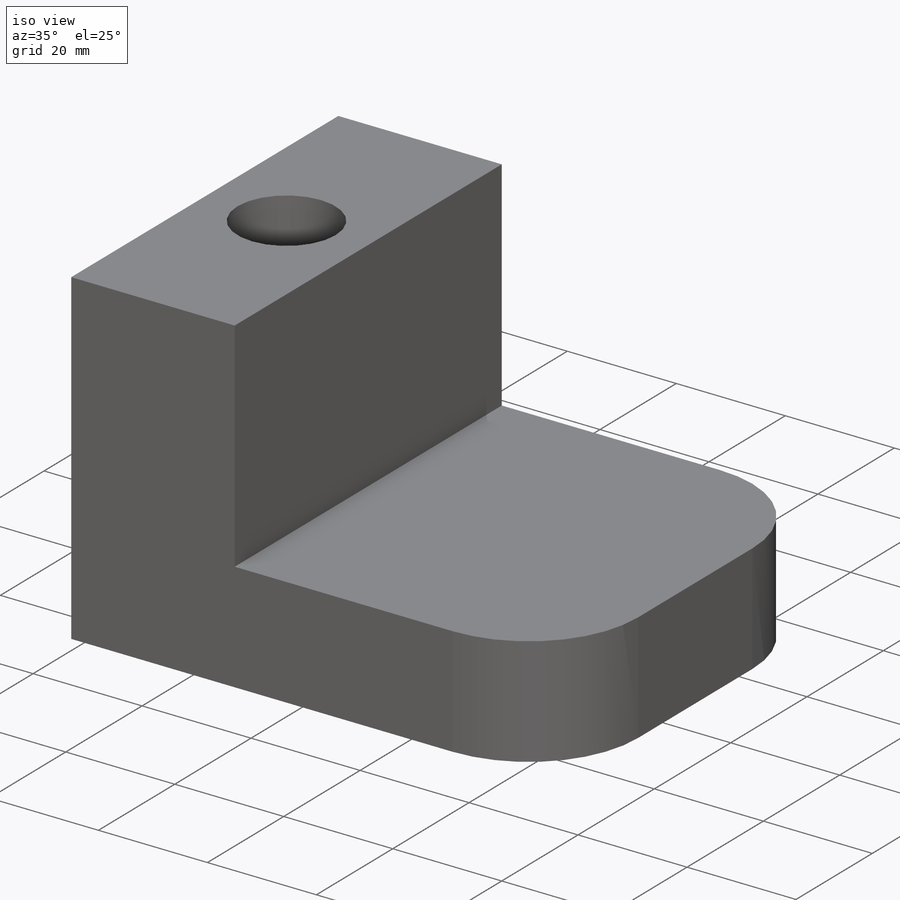
[diagram: iso view]
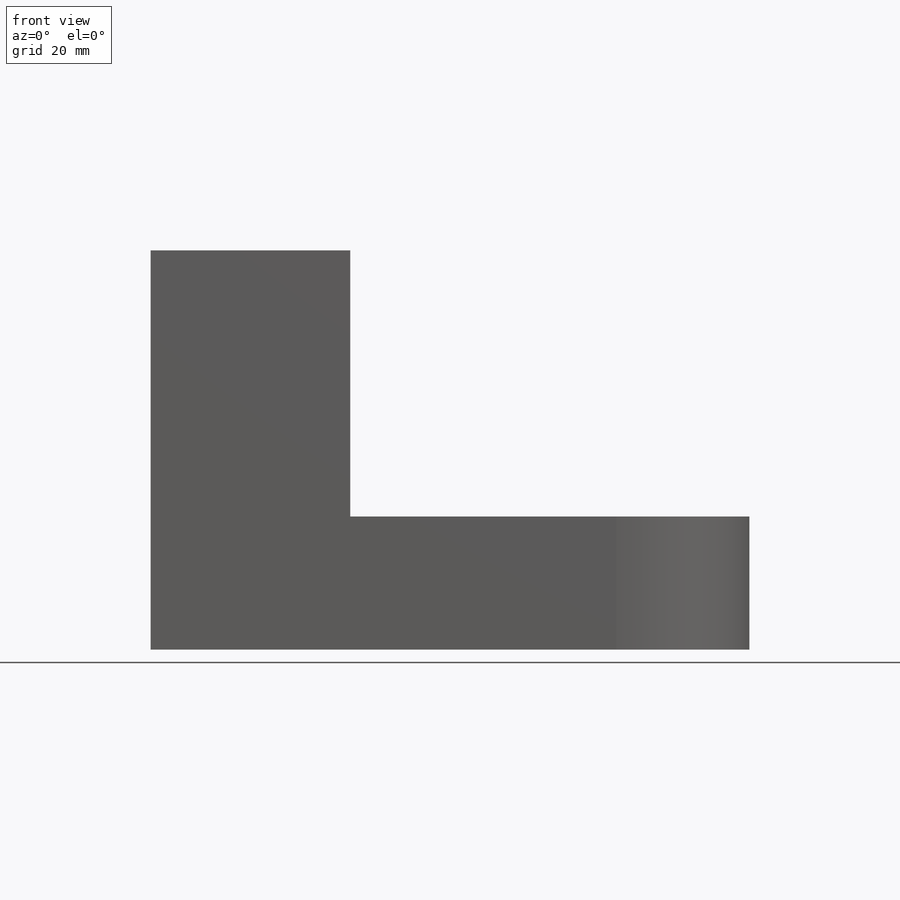
[diagram: front view]
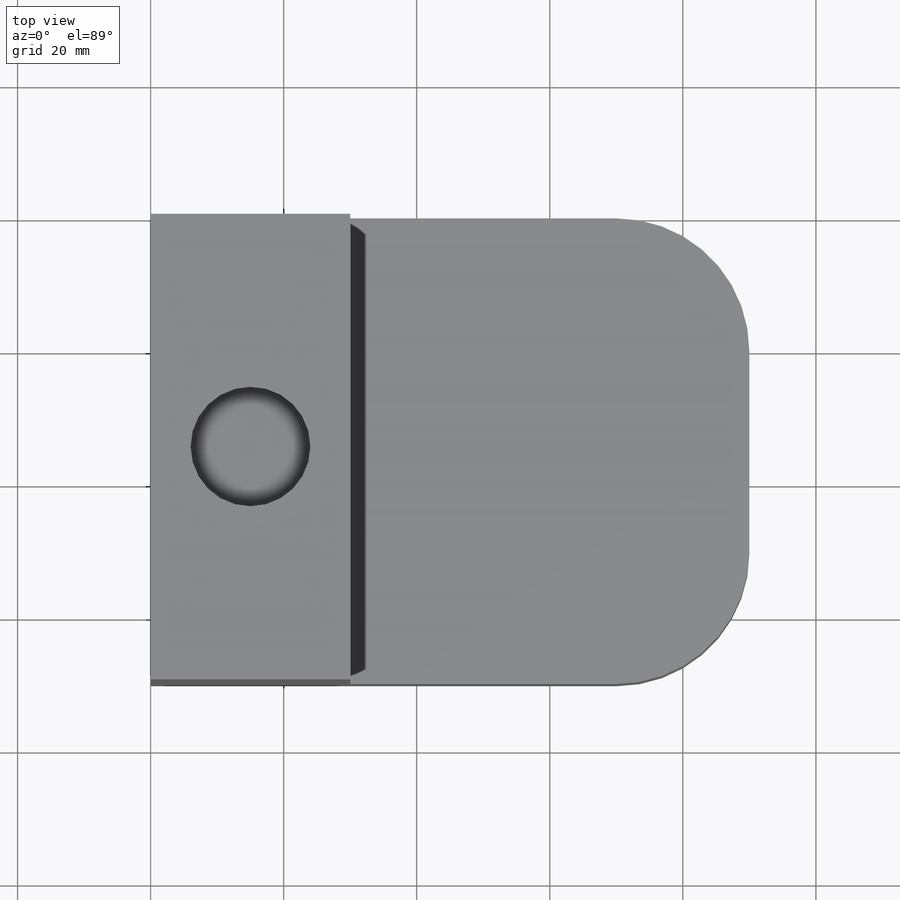
[diagram: top view]
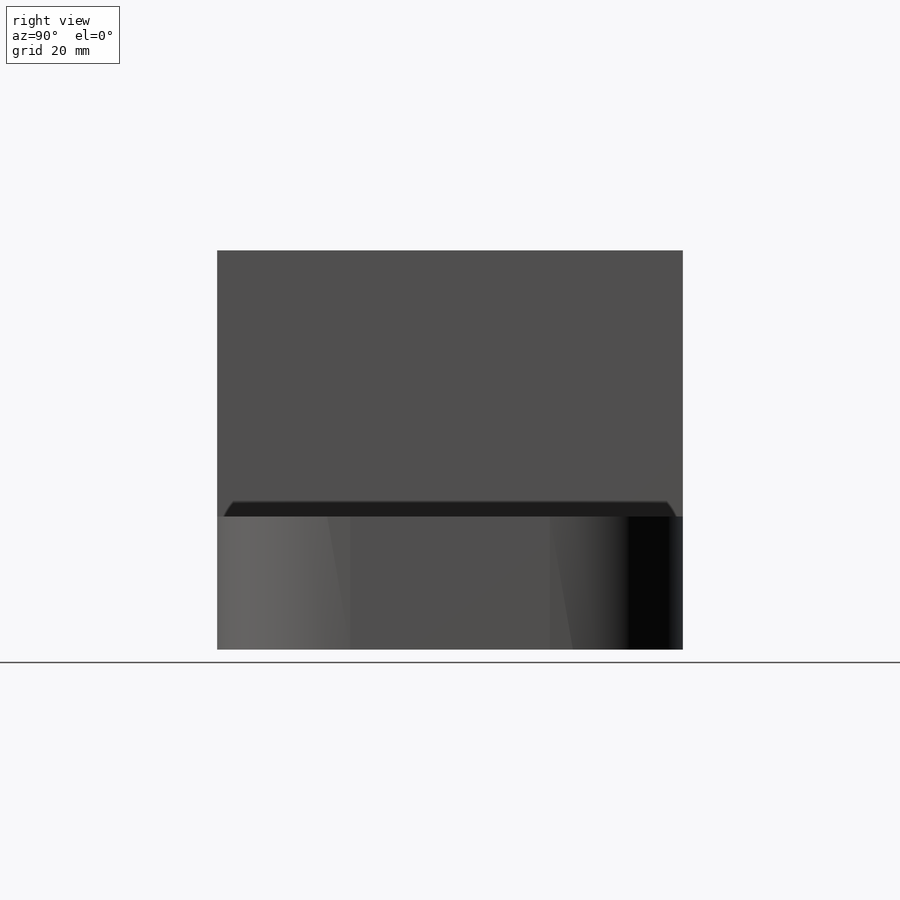
[diagram: right view]
SOLIDWORKS PART (.sldprt)
format: sldprt  version: not decoded by parser v0  size: 134,144 bytes
history: native  units: mm
features: plane x3, sketch x3, cut_extrude x2, material x1, extrude x1, fillet x1 + 3 further entries (+7 scaffold rows collapsed)
feature tree (21):
  scaffold x7  (default folders/planes/origin — collapsed)
  material  "티타늄 Ti-8Mn, 강화"
  "곡면 바디"
  "솔리드 바디"
  plane  "정면"
  plane  "윗면"
  plane  "우측면"
  "원점"
  sketch  "스케치4"  dims[D1=90.0mm D2=60.0mm]
  extrude  "보스-돌출1"  Depth=70mm
  sketch  "스케치5"  dims[D1=30.0mm D2=20.0mm]
  cut_extrude  "컷-돌출1"  Depth=70mm
  sketch  "스케치6"  dims[D1=18.0mm D2=18.0mm]
  cut_extrude  "컷-돌출2"  Depth=9mm
  fillet  "필렛1"  Radius=20mm
decode coverage: 7 of 7 modeling features carry decoded parameters; 3 rows unclassified (native names shown)
note: suppression state not decoded; provenance and decode notes live in map.json
